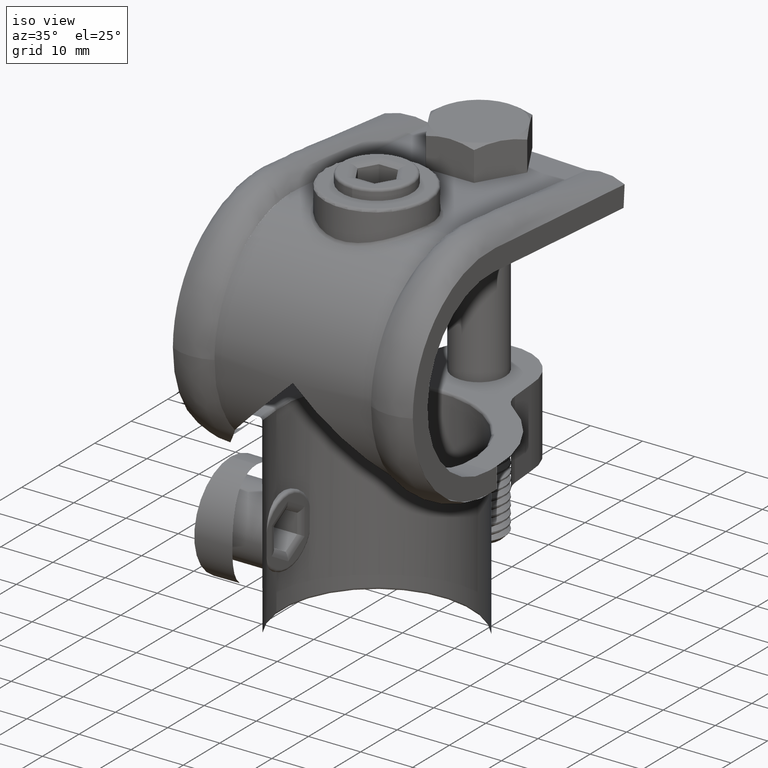
[diagram: clean part render]
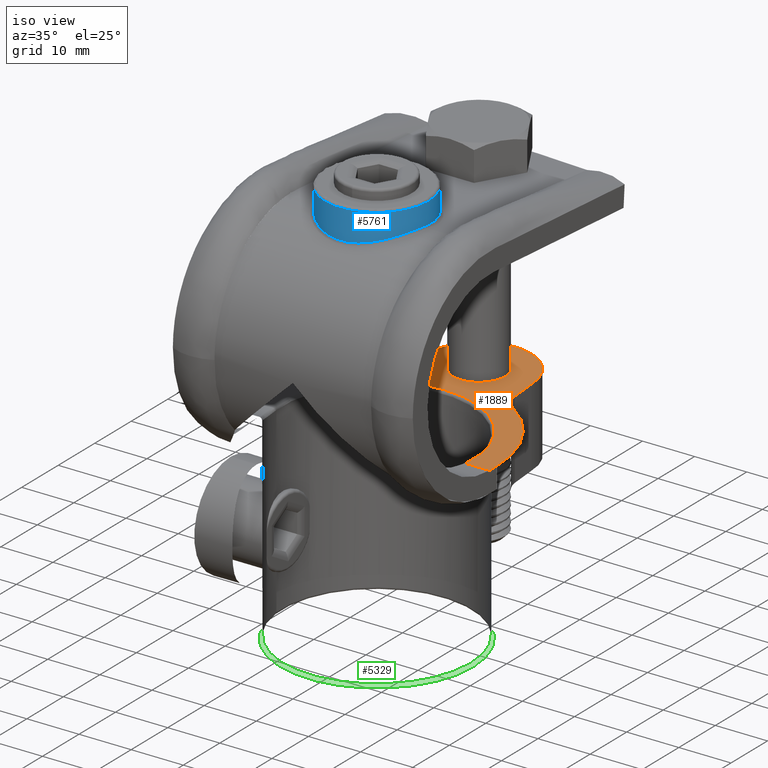
[diagram: same view with three faces highlighted in distinct colors, each labeled with its STEP entity id]
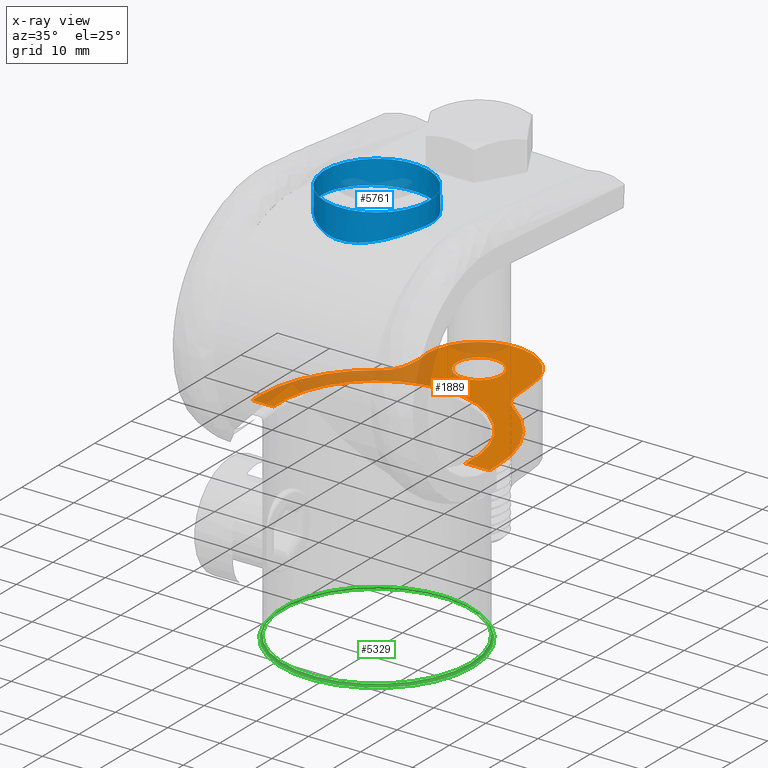
[diagram: x-ray of the same camera — body ghosted, the three highlighted faces saturated]
A machine part, iso view with three faces highlighted in distinct colors.
The next image is the same camera in x-ray (body ghosted, the three faces saturated) — at least one of them is partly hidden behind the body in this view.
Their STEP definitions:

[orange] entity #1889 — the highlighted planar face has unit normal (0, 0, -1).
#8 = CARTESIAN_POINT ( 'NONE',  ( -18.39157415774952398, 20.99999999999999645, -16.99999999999999645 ) ) ;
#85 = DIRECTION ( 'NONE',  ( -1.000000000000000000, -0.000000000000000000, -0.000000000000000000 ) ) ;
#104 = DIRECTION ( 'NONE',  ( -0.000000000000000000, -0.000000000000000000, 1.000000000000000000 ) ) ;
#201 = DIRECTION ( 'NONE',  ( -1.000000000000000000, 0.000000000000000000, 0.000000000000000000 ) ) ;
#219 = EDGE_CURVE ( 'NONE', #5623, #5623, #1251, .T. ) ;
#255 = VERTEX_POINT ( 'NONE', #636 ) ;
#321 = VERTEX_POINT ( 'NONE', #1559 ) ;
#368 = CIRCLE ( 'NONE', #1679, 23.00000000000000000 ) ;
#386 = CARTESIAN_POINT ( 'NONE',  ( 18.39157415774952042, 20.99999999999999645, -16.99999999999999645 ) ) ;
#403 = EDGE_CURVE ( 'NONE', #509, #675, #4976, .T. ) ;
#501 = VECTOR ( 'NONE', #4688, 1000.000000000000000 ) ;
#509 = VERTEX_POINT ( 'NONE', #2505 ) ;
#560 = CARTESIAN_POINT ( 'NONE',  ( 23.00000000000000000, 20.99999999999999645, -16.99999999999999645 ) ) ;
#628 = ORIENTED_EDGE ( 'NONE', *, *, #2521, .T. ) ;
#636 = CARTESIAN_POINT ( 'NONE',  ( -9.707975559066454707, 48.60099801072022530, -16.99999999999999645 ) ) ;
#652 = FACE_BOUND ( 'NONE', #5255, .T. ) ;
#675 = VERTEX_POINT ( 'NONE', #2734 ) ;
#705 = VERTEX_POINT ( 'NONE', #8 ) ;
#757 = ORIENTED_EDGE ( 'NONE', *, *, #2650, .T. ) ;
#801 = ORIENTED_EDGE ( 'NONE', *, *, #4097, .T. ) ;
#812 = DIRECTION ( 'NONE',  ( 0.000000000000000000, 9.448134306107600124E-17, -1.000000000000000000 ) ) ;
#852 = ORIENTED_EDGE ( 'NONE', *, *, #403, .F. ) ;
#870 = ORIENTED_EDGE ( 'NONE', *, *, #2710, .T. ) ;
#1136 = VERTEX_POINT ( 'NONE', #3711 ) ;
#1251 = CIRCLE ( 'NONE', #3850, 4.249999999999993783 ) ;
#1295 = LINE ( 'NONE', #1552, #501 ) ;
#1407 = EDGE_LOOP ( 'NONE', ( #801, #3358, #2148, #870, #3570, #4634, #628, #5648, #852, #1785, #1506, #757 ) ) ;
#1487 = DIRECTION ( 'NONE',  ( 0.000000000000000000, 0.000000000000000000, -1.000000000000000000 ) ) ;
#1506 = ORIENTED_EDGE ( 'NONE', *, *, #3970, .T. ) ;
#1552 = CARTESIAN_POINT ( 'NONE',  ( -22.50000000000000000, 20.99999999999999645, -16.99999999999999645 ) ) ;
#1559 = CARTESIAN_POINT ( 'NONE',  ( -22.50000000000000000, 23.00000000000000355, -16.99999999999999645 ) ) ;
#1580 = CIRCLE ( 'NONE', #3116, 10.00000000000000000 ) ;
#1627 = AXIS2_PLACEMENT_3D ( 'NONE', #2469, #2976, #201 ) ;
#1679 = AXIS2_PLACEMENT_3D ( 'NONE', #1764, #812, #3983 ) ;
#1700 = DIRECTION ( 'NONE',  ( 0.000000000000000000, 0.000000000000000000, 1.000000000000000000 ) ) ;
#1703 = DIRECTION ( 'NONE',  ( -0.08715574274765865159, 0.9961946980917454342, -0.000000000000000000 ) ) ;
#1764 = CARTESIAN_POINT ( 'NONE',  ( 0.000000000000000000, 23.00000000000000000, -16.99999999999590727 ) ) ;
#1785 = ORIENTED_EDGE ( 'NONE', *, *, #2072, .F. ) ;
#1850 = VERTEX_POINT ( 'NONE', #2437 ) ;
#1889 = ADVANCED_FACE ( 'NONE', ( #5575, #652 ), #5214, .F. ) ;
#1991 = LINE ( 'NONE', #4482, #3744 ) ;
#2031 = VECTOR ( 'NONE', #5551, 1000.000000000000000 ) ;
#2063 = VERTEX_POINT ( 'NONE', #5714 ) ;
#2065 = VERTEX_POINT ( 'NONE', #3021 ) ;
#2072 = EDGE_CURVE ( 'NONE', #4124, #509, #368, .T. ) ;
#2134 = AXIS2_PLACEMENT_3D ( 'NONE', #4442, #5315, #5328 ) ;
#2139 = DIRECTION ( 'NONE',  ( -1.000000000000000000, -0.000000000000000000, -0.000000000000000000 ) ) ;
#2148 = ORIENTED_EDGE ( 'NONE', *, *, #5096, .T. ) ;
#2362 = CARTESIAN_POINT ( 'NONE',  ( -15.42429481380559686, 46.36859280095423230, -16.99999999999999645 ) ) ;
#2399 = CARTESIAN_POINT ( 'NONE',  ( 0.000000000000000000, 51.00000000000000711, -16.99999999999999645 ) ) ;
#2425 = DIRECTION ( 'NONE',  ( 1.000000000000000000, 0.000000000000000000, 0.000000000000000000 ) ) ;
#2437 = CARTESIAN_POINT ( 'NONE',  ( 9.999999999999998224, 51.00000000000000711, -16.99999999999999645 ) ) ;
#2452 = DIRECTION ( 'NONE',  ( 0.000000000000000000, 0.000000000000000000, -1.000000000000000000 ) ) ;
#2469 = CARTESIAN_POINT ( 'NONE',  ( 15.42429481380559864, 46.36859280095423230, -16.99999999999590727 ) ) ;
#2489 = VERTEX_POINT ( 'NONE', #386 ) ;
#2505 = CARTESIAN_POINT ( 'NONE',  ( 23.00000000000000355, 23.00000000000000000, -16.99999999999999645 ) ) ;
#2521 = EDGE_CURVE ( 'NONE', #705, #2489, #5656, .T. ) ;
#2566 = LINE ( 'NONE', #5256, #4611 ) ;
#2637 = EDGE_CURVE ( 'NONE', #705, #4232, #4123, .T. ) ;
#2650 = EDGE_CURVE ( 'NONE', #1136, #1850, #2566, .T. ) ;
#2654 = DIRECTION ( 'NONE',  ( -1.000000000000000000, -9.251858538542969855E-16, 0.000000000000000000 ) ) ;
#2694 = DIRECTION ( 'NONE',  ( -0.08715574274765820750, -0.9961946980917455452, 0.000000000000000000 ) ) ;
#2710 = EDGE_CURVE ( 'NONE', #2065, #321, #5088, .T. ) ;
#2734 = CARTESIAN_POINT ( 'NONE',  ( 23.00000000000000000, 20.99999999999999645, -16.99999999999999645 ) ) ;
#2976 = DIRECTION ( 'NONE',  ( 0.000000000000000000, 0.000000000000000000, -1.000000000000000000 ) ) ;
#3020 = DIRECTION ( 'NONE',  ( 1.000000000000000000, 0.000000000000000000, 0.000000000000000000 ) ) ;
#3021 = CARTESIAN_POINT ( 'NONE',  ( -12.39452261823664081, 41.77833350076679864, -16.99999999999999645 ) ) ;
#3049 = DIRECTION ( 'NONE',  ( -0.000000000000000000, -0.000000000000000000, 1.000000000000000000 ) ) ;
#3056 = VECTOR ( 'NONE', #2139, 1000.000000000000000 ) ;
#3116 = AXIS2_PLACEMENT_3D ( 'NONE', #5757, #1700, #3020 ) ;
#3358 = ORIENTED_EDGE ( 'NONE', *, *, #5665, .T. ) ;
#3545 = LINE ( 'NONE', #560, #4386 ) ;
#3570 = ORIENTED_EDGE ( 'NONE', *, *, #4077, .T. ) ;
#3711 = CARTESIAN_POINT ( 'NONE',  ( 10.44332132334686847, 45.93281408721593806, -16.99999999999999645 ) ) ;
#3732 = CARTESIAN_POINT ( 'NONE',  ( 23.00000000000000000, 20.99999999999999645, -16.99999999999999645 ) ) ;
#3744 = VECTOR ( 'NONE', #2694, 1000.000000000000000 ) ;
#3850 = AXIS2_PLACEMENT_3D ( 'NONE', #2399, #104, #2425 ) ;
#3941 = CARTESIAN_POINT ( 'NONE',  ( 12.66995645419745919, 42.19562980078383418, -16.99999999999590372 ) ) ;
#3970 = EDGE_CURVE ( 'NONE', #4124, #1136, #5560, .T. ) ;
#3983 = DIRECTION ( 'NONE',  ( 0.000000000000000000, 1.000000000000000000, 1.508455196501571429E-16 ) ) ;
#4077 = EDGE_CURVE ( 'NONE', #321, #4232, #1295, .T. ) ;
#4097 = EDGE_CURVE ( 'NONE', #1850, #255, #1580, .T. ) ;
#4123 = LINE ( 'NONE', #5221, #3056 ) ;
#4124 = VERTEX_POINT ( 'NONE', #3941 ) ;
#4232 = VERTEX_POINT ( 'NONE', #4808 ) ;
#4301 = DIRECTION ( 'NONE',  ( -1.000000000000000000, 0.000000000000000000, -0.000000000000000000 ) ) ;
#4386 = VECTOR ( 'NONE', #85, 1000.000000000000000 ) ;
#4442 = CARTESIAN_POINT ( 'NONE',  ( 0.000000000000000000, 23.00000000000000000, -16.99999999999999645 ) ) ;
#4482 = CARTESIAN_POINT ( 'NONE',  ( -9.945223974301001135, 45.88923621584212498, -16.99999999999999645 ) ) ;
#4611 = VECTOR ( 'NONE', #1703, 1000.000000000000227 ) ;
#4634 = ORIENTED_EDGE ( 'NONE', *, *, #2637, .F. ) ;
#4688 = DIRECTION ( 'NONE',  ( 0.000000000000000000, -1.000000000000000000, 0.000000000000000000 ) ) ;
#4749 = AXIS2_PLACEMENT_3D ( 'NONE', #5823, #3049, #2654 ) ;
#4808 = CARTESIAN_POINT ( 'NONE',  ( -22.50000000000000000, 20.99999999999999645, -16.99999999999999645 ) ) ;
#4976 = LINE ( 'NONE', #3732, #2031 ) ;
#5039 = CARTESIAN_POINT ( 'NONE',  ( 4.249999999999993783, 51.00000000000000711, -16.99999999999999645 ) ) ;
#5050 = AXIS2_PLACEMENT_3D ( 'NONE', #5187, #2452, #4301 ) ;
#5058 = EDGE_CURVE ( 'NONE', #675, #2489, #3545, .T. ) ;
#5088 = CIRCLE ( 'NONE', #4749, 22.50000000000000355 ) ;
#5096 = EDGE_CURVE ( 'NONE', #2063, #2065, #5136, .T. ) ;
#5136 = CIRCLE ( 'NONE', #5815, 5.499999999999998224 ) ;
#5187 = CARTESIAN_POINT ( 'NONE',  ( 23.00000000000000000, 20.99999999999999645, -16.99999999999999645 ) ) ;
#5214 = PLANE ( 'NONE',  #5050 ) ;
#5221 = CARTESIAN_POINT ( 'NONE',  ( 23.00000000000000000, 20.99999999999999645, -16.99999999999999645 ) ) ;
#5255 = EDGE_LOOP ( 'NONE', ( #5375 ) ) ;
#5256 = CARTESIAN_POINT ( 'NONE',  ( 9.999999999999998224, 51.00000000000000711, -16.99999999999999645 ) ) ;
#5315 = DIRECTION ( 'NONE',  ( 0.000000000000000000, 0.000000000000000000, -1.000000000000000000 ) ) ;
#5328 = DIRECTION ( 'NONE',  ( -1.000000000000000000, 0.000000000000000000, 0.000000000000000000 ) ) ;
#5375 = ORIENTED_EDGE ( 'NONE', *, *, #219, .F. ) ;
#5456 = DIRECTION ( 'NONE',  ( -1.000000000000000000, 0.000000000000000000, 0.000000000000000000 ) ) ;
#5551 = DIRECTION ( 'NONE',  ( -0.000000000000000000, -1.000000000000000000, -0.000000000000000000 ) ) ;
#5560 = CIRCLE ( 'NONE', #1627, 4.999999999999999112 ) ;
#5575 = FACE_OUTER_BOUND ( 'NONE', #1407, .T. ) ;
#5623 = VERTEX_POINT ( 'NONE', #5039 ) ;
#5648 = ORIENTED_EDGE ( 'NONE', *, *, #5058, .F. ) ;
#5656 = CIRCLE ( 'NONE', #2134, 18.50000000000000000 ) ;
#5665 = EDGE_CURVE ( 'NONE', #255, #2063, #1991, .T. ) ;
#5714 = CARTESIAN_POINT ( 'NONE',  ( -9.945223974300997583, 45.88923621584211787, -16.99999999999999645 ) ) ;
#5757 = CARTESIAN_POINT ( 'NONE',  ( 0.000000000000000000, 51.00000000000000711, -16.99999999999999645 ) ) ;
#5815 = AXIS2_PLACEMENT_3D ( 'NONE', #2362, #1487, #5456 ) ;
#5823 = CARTESIAN_POINT ( 'NONE',  ( 0.000000000000000000, 23.00000000000000000, -16.99999999999999645 ) ) ;

[blue] entity #5761 — the highlighted cylindrical surface (bore or boss wall) has radius 10 mm, axis along (-0, -0, -1).
#58 = DIRECTION ( 'NONE',  ( 1.000000000000000000, 0.000000000000000000, 0.000000000000000000 ) ) ;
#108 = CARTESIAN_POINT ( 'NONE',  ( 9.957913707954046956, 21.87926474863679971, 21.49493510017674680 ) ) ;
#134 = ORIENTED_EDGE ( 'NONE', *, *, #4302, .T. ) ;
#154 = CARTESIAN_POINT ( 'NONE',  ( -0.6284141603556343547, 12.99942314188009895, 19.74815695594930887 ) ) ;
#168 = CARTESIAN_POINT ( 'NONE',  ( 4.318927399466427453, 13.95882784139762833, 20.15369601267275002 ) ) ;
#189 = CARTESIAN_POINT ( 'NONE',  ( 9.548817323413423708, 20.01282915434693876, 21.47231078638959545 ) ) ;
#587 = CARTESIAN_POINT ( 'NONE',  ( 0.000000000000000000, 33.00000000000000000, 20.67841565945137106 ) ) ;
#597 = CARTESIAN_POINT ( 'NONE',  ( -2.528198117778853504, 13.30391192906687614, 19.88321010423269186 ) ) ;
#618 = CARTESIAN_POINT ( 'NONE',  ( 1.279392480199014415, 13.06156883875776487, 19.77660538805012891 ) ) ;
#639 = CARTESIAN_POINT ( 'NONE',  ( -7.759491315849316173, 16.66076739594455702, 20.99687629588690641 ) ) ;
#976 = DIRECTION ( 'NONE',  ( -0.000000000000000000, -0.000000000000000000, -1.000000000000000000 ) ) ;
#1020 = CARTESIAN_POINT ( 'NONE',  ( -1.277255796022193302, 13.06146252039265754, 19.77655144021353095 ) ) ;
#1025 = CARTESIAN_POINT ( 'NONE',  ( 10.27838529439732085, 28.59835733148294423, 21.00159814053146690 ) ) ;
#1028 = CARTESIAN_POINT ( 'NONE',  ( 10.00000000000000178, 23.00000000000000000, 25.44884505545632436 ) ) ;
#1033 = CARTESIAN_POINT ( 'NONE',  ( -6.422050961261445146, 15.32822392088062813, 20.63075307217637544 ) ) ;
#1057 = CARTESIAN_POINT ( 'NONE',  ( 2.221375520317130370, 13.24460120938047325, 19.85711442606154264 ) ) ;
#1072 = CIRCLE ( 'NONE', #3906, 10.00000000000000178 ) ;
#1088 = FACE_OUTER_BOUND ( 'NONE', #1541, .T. ) ;
#1102 = CARTESIAN_POINT ( 'NONE',  ( 4.877066882435594053, 14.24694070061845963, 20.26543574688401250 ) ) ;
#1124 = VERTEX_POINT ( 'NONE', #3694 ) ;
#1173 = FACE_OUTER_BOUND ( 'NONE', #2136, .T. ) ;
#1324 = VERTEX_POINT ( 'NONE', #3325 ) ;
#1383 = CARTESIAN_POINT ( 'NONE',  ( 9.988644987646862816, 22.52358493857011013, 21.44762708058624057 ) ) ;
#1476 = CARTESIAN_POINT ( 'NONE',  ( 0.000000000000000000, 23.00000000000000000, 25.44884505545632436 ) ) ;
#1485 = CARTESIAN_POINT ( 'NONE',  ( 9.988644987646862816, 22.52358493857011013, 21.44762708058624057 ) ) ;
#1510 = CARTESIAN_POINT ( 'NONE',  ( -8.802149229763248428, 18.24355439277756830, 21.29248727585759582 ) ) ;
#1529 = CARTESIAN_POINT ( 'NONE',  ( 2.535046191059485921, 13.32142806048282857, 19.89055205022527062 ) ) ;
#1541 = EDGE_LOOP ( 'NONE', ( #3704, #134 ) ) ;
#1568 = CARTESIAN_POINT ( 'NONE',  ( -9.863546533588559484, 21.23411560358862005, 21.50937177093204511 ) ) ;
#1963 = CARTESIAN_POINT ( 'NONE',  ( -6.081678145960359494, 33.00000000000000000, 20.67841565945136750 ) ) ;
#2026 = CARTESIAN_POINT ( 'NONE',  ( 7.749087484988763208, 16.67139181398106018, 20.99379704848349704 ) ) ;
#2089 = ORIENTED_EDGE ( 'NONE', *, *, #3349, .T. ) ;
#2136 = EDGE_LOOP ( 'NONE', ( #2089 ) ) ;
#2381 = CARTESIAN_POINT ( 'NONE',  ( -10.27838529439732085, 28.59835733148294423, 21.00159814053146690 ) ) ;
#2448 = CARTESIAN_POINT ( 'NONE',  ( -4.872612590999192861, 14.26173327928117196, 20.26802916865885251 ) ) ;
#2462 = CARTESIAN_POINT ( 'NONE',  ( 7.334526358813747038, 16.19526918136935478, 20.87690611498661042 ) ) ;
#2841 = CARTESIAN_POINT ( 'NONE',  ( -6.662418763586894777, 15.53597266107563790, 20.69378343670682696 ) ) ;
#2858 = CARTESIAN_POINT ( 'NONE',  ( -9.957898592210229438, 21.87894782792842108, 21.49495836949426675 ) ) ;
#2880 = CARTESIAN_POINT ( 'NONE',  ( 5.943299411666576049, 14.93284309204764426, 20.50674688258591161 ) ) ;
#2901 = CARTESIAN_POINT ( 'NONE',  ( 9.337512085085940328, 19.40639874249884045, 21.42912277522692222 ) ) ;
#3168 = AXIS2_PLACEMENT_3D ( 'NONE', #4587, #976, #3246 ) ;
#3246 = DIRECTION ( 'NONE',  ( -1.000000000000000000, 0.000000000000000000, 0.000000000000000000 ) ) ;
#3261 = CARTESIAN_POINT ( 'NONE',  ( 6.081678145960359494, 33.00000000000000000, 20.67841565945136750 ) ) ;
#3283 = DIRECTION ( 'NONE',  ( -0.000000000000000000, -0.000000000000000000, -1.000000000000000000 ) ) ;
#3304 = CARTESIAN_POINT ( 'NONE',  ( -8.309331391067125594, 17.42739686450833148, 21.15402424744567611 ) ) ;
#3325 = CARTESIAN_POINT ( 'NONE',  ( -9.988644987646862816, 22.52358493857011013, 21.44762708058624057 ) ) ;
#3326 = CARTESIAN_POINT ( 'NONE',  ( -5.671865005370017698, 14.75814228320154697, 20.44529749132380303 ) ) ;
#3338 = CARTESIAN_POINT ( 'NONE',  ( -9.988644987646862816, 22.52358493857011013, 21.44762708058624057 ) ) ;
#3348 = CARTESIAN_POINT ( 'NONE',  ( -8.481358323958193779, 17.69263089109939102, 21.20309413438249635 ) ) ;
#3349 = EDGE_CURVE ( 'NONE', #3740, #3740, #1072, .T. ) ;
#3367 = CARTESIAN_POINT ( 'NONE',  ( 9.639243566337523106, 20.31923550677878509, 21.48701418157898502 ) ) ;
#3694 = CARTESIAN_POINT ( 'NONE',  ( 9.988644987646862816, 22.52358493857011013, 21.44762708058624057 ) ) ;
#3704 = ORIENTED_EDGE ( 'NONE', *, *, #3756, .T. ) ;
#3728 = CARTESIAN_POINT ( 'NONE',  ( 3.145128033746265928, 13.50213794422356273, 19.96736464966122071 ) ) ;
#3740 = VERTEX_POINT ( 'NONE', #1028 ) ;
#3747 = CARTESIAN_POINT ( 'NONE',  ( -9.349261928629916341, 19.39504891747289506, 21.43444664209032524 ) ) ;
#3756 = EDGE_CURVE ( 'NONE', #1124, #1324, #4136, .T. ) ;
#3768 = CARTESIAN_POINT ( 'NONE',  ( -3.135740523453170336, 13.48308034713220138, 19.96088334852487378 ) ) ;
#3808 = CARTESIAN_POINT ( 'NONE',  ( 9.216716581338349812, 19.10725041736089480, 21.40061165871976101 ) ) ;
#3906 = AXIS2_PLACEMENT_3D ( 'NONE', #1476, #3283, #58 ) ;
#4136 =( BOUNDED_CURVE ( )  B_SPLINE_CURVE ( 3, ( #1383, #1025, #3261, #587, #1963, #2381, #3338 ),
 .UNSPECIFIED., .F., .T. ) 
 B_SPLINE_CURVE_WITH_KNOTS ( ( 4, 3, 4 ),
 ( 4.664729433717726970, 6.283185307179586232, 7.901641180641445494 ),
 .UNSPECIFIED. ) 
 CURVE ( )  GEOMETRIC_REPRESENTATION_ITEM ( )  RATIONAL_B_SPLINE_CURVE ( ( 1.000000000000000000, 0.7933716152807310795, 0.7933716152807310795, 1.000000000000000000, 0.7933716152807310795, 0.7933716152807310795, 1.000000000000000000 ) ) 
 REPRESENTATION_ITEM ( '' )  );
#4180 = CARTESIAN_POINT ( 'NONE',  ( 7.117389856191372211, 15.96858646835511131, 20.81654474253240039 ) ) ;
#4199 = CARTESIAN_POINT ( 'NONE',  ( 0.6466411553465006845, 13.00058516370528139, 19.74868211389681960 ) ) ;
#4214 = CARTESIAN_POINT ( 'NONE',  ( -4.311746852468921531, 13.97179431865830956, 20.15766752971333631 ) ) ;
#4256 = CARTESIAN_POINT ( 'NONE',  ( 3.443400289478798726, 13.60627994789846618, 20.01085549874707681 ) ) ;
#4302 = EDGE_CURVE ( 'NONE', #1324, #1124, #4618, .T. ) ;
#4587 = CARTESIAN_POINT ( 'NONE',  ( 0.000000000000000000, 23.00000000000000000, 25.94884505545632436 ) ) ;
#4618 = B_SPLINE_CURVE_WITH_KNOTS ( 'NONE', 3,
 ( #4640, #2858, #1568, #4629, #3747, #4697, #1510, #3348, #3304, #639, #5142, #2841, #1033, #5123, #3326, #4680, #2448, #4214, #5528, #3768, #597, #1020, #154, #4199, #618, #1057, #1529, #3728, #4256, #168, #1102, #2880, #4660, #4180, #2462, #2026, #5591, #5075, #5571, #3808, #2901, #189, #3367, #5515, #108, #1485 ),
 .UNSPECIFIED., .F., .F.,
 ( 4, 2, 2, 2, 2, 2, 2, 2, 2, 2, 2, 2, 2, 2, 2, 2, 2, 2, 2, 2, 2, 2, 4 ),
 ( 0.000000000000000000, 0.001937383792395091153, 0.003874767584790182306, 0.004843459480987733629, 0.005812151377185283650, 0.007749535169580383694, 0.008718227065777935450, 0.009686918961975484604, 0.01065561085817303549, 0.01162430275437058638, 0.01356168654676568990, 0.01549907033916079514, 0.01743645413155589866, 0.01840514602775344954, 0.01937383792395100390, 0.02131122171634610915, 0.02324860550874121440, 0.02421729740493876529, 0.02518598930113631965, 0.02712337309353142836, 0.02809206498972897578, 0.02906075688592652667, 0.03099814067832162498 ),
 .UNSPECIFIED. ) ;
#4629 = CARTESIAN_POINT ( 'NONE',  ( -9.558760270413781512, 19.99367333536173064, 21.47874565312440254 ) ) ;
#4640 = CARTESIAN_POINT ( 'NONE',  ( -9.988644987646862816, 22.52358493857011013, 21.44762708058624057 ) ) ;
#4660 = CARTESIAN_POINT ( 'NONE',  ( 6.436725328325750617, 15.32141774024993808, 20.63289053600902179 ) ) ;
#4680 = CARTESIAN_POINT ( 'NONE',  ( -5.144500033172579201, 14.41906819326836597, 20.32597970587691094 ) ) ;
#4697 = CARTESIAN_POINT ( 'NONE',  ( -8.950307484919859391, 18.52863682365509490, 21.33261480351139383 ) ) ;
#4962 = CYLINDRICAL_SURFACE ( 'NONE', #3168, 10.00000000000000178 ) ;
#5075 = CARTESIAN_POINT ( 'NONE',  ( 8.499700337101936398, 17.69380416288680635, 21.20842910781523827 ) ) ;
#5123 = CARTESIAN_POINT ( 'NONE',  ( -5.927341642754367257, 14.93988165054275896, 20.50666820579385785 ) ) ;
#5142 = CARTESIAN_POINT ( 'NONE',  ( -7.348269606432975998, 16.18816872041054822, 20.87884542787034547 ) ) ;
#5515 = CARTESIAN_POINT ( 'NONE',  ( 9.865896330319309016, 21.24781599237654817, 21.50923200436448468 ) ) ;
#5528 = CARTESIAN_POINT ( 'NONE',  ( -4.021188221486281300, 13.83860259759615019, 20.10501206471530722 ) ) ;
#5571 = CARTESIAN_POINT ( 'NONE',  ( 8.817285732847127022, 18.23965046233502818, 21.29866783857602641 ) ) ;
#5591 = CARTESIAN_POINT ( 'NONE',  ( 7.947057112518083777, 16.92180633156874237, 21.05048573390707745 ) ) ;
#5761 = ADVANCED_FACE ( 'NONE', ( #1173, #1088 ), #4962, .T. ) ;

[green] entity #5329 — the highlighted toroidal blend (fillet) surface has major radius 18.5 mm and minor (blend) radius 0.5 mm.
#81 = DIRECTION ( 'NONE',  ( 0.000000000000000000, 0.000000000000000000, 1.000000000000000000 ) ) ;
#101 = EDGE_LOOP ( 'NONE', ( #3019 ) ) ;
#484 = FACE_OUTER_BOUND ( 'NONE', #3294, .T. ) ;
#672 = AXIS2_PLACEMENT_3D ( 'NONE', #5574, #2011, #2451 ) ;
#699 = EDGE_CURVE ( 'NONE', #4788, #4788, #891, .T. ) ;
#891 = CIRCLE ( 'NONE', #4556, 18.00000000000000000 ) ;
#1140 = EDGE_CURVE ( 'NONE', #2745, #2745, #3144, .T. ) ;
#1405 = DIRECTION ( 'NONE',  ( -0.000000000000000000, -0.000000000000000000, -1.000000000000000000 ) ) ;
#1462 = DIRECTION ( 'NONE',  ( 1.000000000000000000, 0.000000000000000000, 0.000000000000000000 ) ) ;
#1647 = FACE_OUTER_BOUND ( 'NONE', #101, .T. ) ;
#1897 = CARTESIAN_POINT ( 'NONE',  ( 18.50000000000000000, 23.00000000000000000, -53.00000000000000000 ) ) ;
#2011 = DIRECTION ( 'NONE',  ( 0.000000000000000000, 0.000000000000000000, 1.000000000000000000 ) ) ;
#2451 = DIRECTION ( 'NONE',  ( 1.000000000000000000, 0.000000000000000000, 0.000000000000000000 ) ) ;
#2720 = CARTESIAN_POINT ( 'NONE',  ( 0.000000000000000000, 23.00000000000000000, -52.50000000000000000 ) ) ;
#2745 = VERTEX_POINT ( 'NONE', #1897 ) ;
#2747 = CARTESIAN_POINT ( 'NONE',  ( 18.00000000000000000, 23.00000000000000000, -52.50000000000000000 ) ) ;
#2877 = TOROIDAL_SURFACE ( 'NONE', #672, 18.50000000000000000, 0.5000000000000000000 ) ;
#3019 = ORIENTED_EDGE ( 'NONE', *, *, #1140, .F. ) ;
#3144 = CIRCLE ( 'NONE', #5404, 18.50000000000000000 ) ;
#3294 = EDGE_LOOP ( 'NONE', ( #4998 ) ) ;
#4555 = DIRECTION ( 'NONE',  ( 1.000000000000000000, 0.000000000000000000, 0.000000000000000000 ) ) ;
#4556 = AXIS2_PLACEMENT_3D ( 'NONE', #2720, #1405, #4555 ) ;
#4788 = VERTEX_POINT ( 'NONE', #2747 ) ;
#4998 = ORIENTED_EDGE ( 'NONE', *, *, #699, .F. ) ;
#5329 = ADVANCED_FACE ( 'NONE', ( #1647, #484 ), #2877, .T. ) ;
#5404 = AXIS2_PLACEMENT_3D ( 'NONE', #5468, #81, #1462 ) ;
#5468 = CARTESIAN_POINT ( 'NONE',  ( 0.000000000000000000, 23.00000000000000000, -53.00000000000000000 ) ) ;
#5574 = CARTESIAN_POINT ( 'NONE',  ( 0.000000000000000000, 23.00000000000000000, -52.50000000000000000 ) ) ;